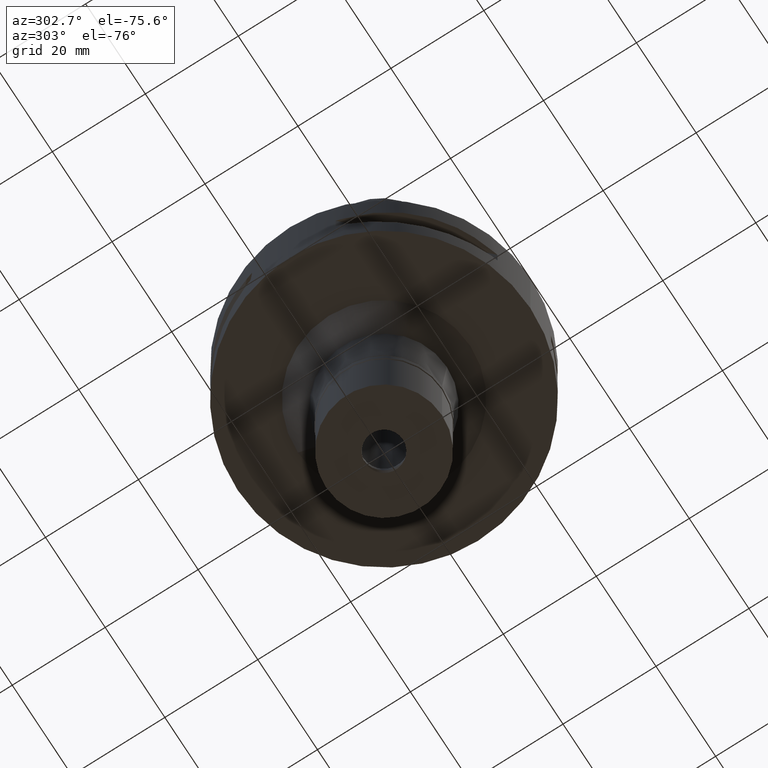
[diagram: clean part render]
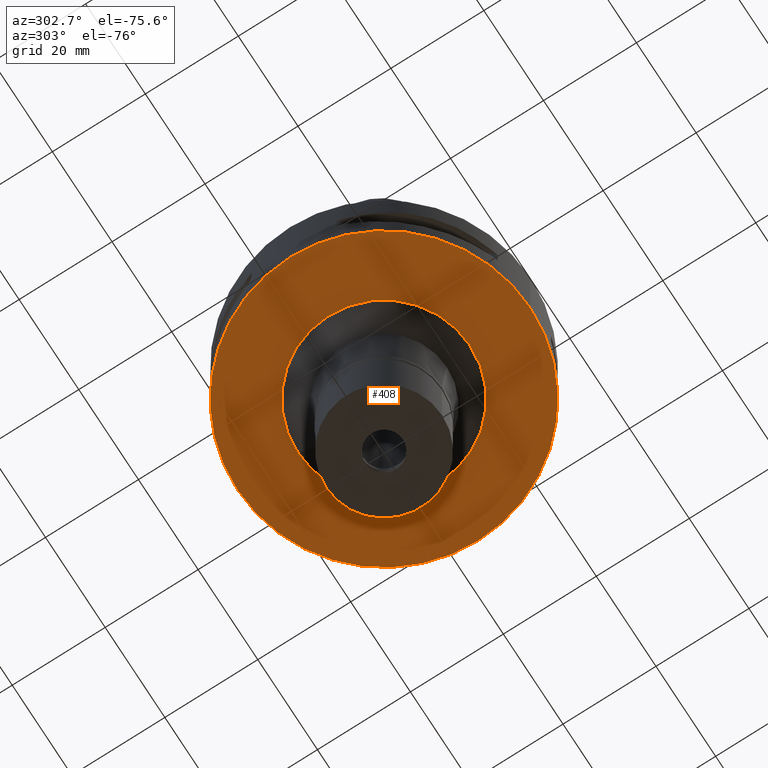
[diagram: same view with one face highlighted and labeled with its STEP entity id]
A machine part, auxiliary view. The second image highlights one B-rep face of the part: STEP entity #408.
In plain terms, the highlighted planar face has unit normal (0, 0, -1).
Its self-contained STEP definition (entity closure, byte-faithful):
#364 = AXIS2_PLACEMENT_3D ( 'NONE', #1292, #963, #2440 ) ;
#408 = ADVANCED_FACE ( 'NONE', ( #2336, #3432 ), #3809, .T. ) ;
#478 = EDGE_CURVE ( 'NONE', #1981, #3658, #1139, .T. ) ;
#708 = ORIENTED_EDGE ( 'NONE', *, *, #4659, .F. ) ;
#760 = AXIS2_PLACEMENT_3D ( 'NONE', #2020, #1599, #3071 ) ;
#842 = CIRCLE ( 'NONE', #4557, 31.50000000000000000 ) ;
#913 = AXIS2_PLACEMENT_3D ( 'NONE', #4223, #4545, #2643 ) ;
#962 = ORIENTED_EDGE ( 'NONE', *, *, #2249, .F. ) ;
#963 = DIRECTION ( 'NONE',  ( 0.0000000000000000000, 0.0000000000000000000, -1.000000000000000000 ) ) ;
#1139 = CIRCLE ( 'NONE', #760, 31.50000000000000000 ) ;
#1245 = EDGE_LOOP ( 'NONE', ( #2908, #708 ) ) ;
#1292 = CARTESIAN_POINT ( 'NONE',  ( 0.0000000000000000000, 0.0000000000000000000, -22.00000000000000000 ) ) ;
#1300 = CARTESIAN_POINT ( 'NONE',  ( 0.0000000000000000000, 31.50000000000000000, -22.00000000000000000 ) ) ;
#1325 = DIRECTION ( 'NONE',  ( 0.0000000000000000000, 1.000000000000000000, 0.0000000000000000000 ) ) ;
#1344 = CARTESIAN_POINT ( 'NONE',  ( 0.0000000000000000000, 0.0000000000000000000, -22.00000000000000000 ) ) ;
#1360 = EDGE_LOOP ( 'NONE', ( #2106, #962 ) ) ;
#1377 = CARTESIAN_POINT ( 'NONE',  ( 0.0000000000000000000, 1.257589798043999847E-14, -22.00000000000000000 ) ) ;
#1495 = CIRCLE ( 'NONE', #364, 18.52361736325000052 ) ;
#1504 = EDGE_CURVE ( 'NONE', #2961, #1960, #2393, .T. ) ;
#1599 = DIRECTION ( 'NONE',  ( 0.0000000000000000000, 0.0000000000000000000, 1.000000000000000000 ) ) ;
#1960 = VERTEX_POINT ( 'NONE', #2040 ) ;
#1981 = VERTEX_POINT ( 'NONE', #1300 ) ;
#2020 = CARTESIAN_POINT ( 'NONE',  ( 0.0000000000000000000, 1.257589798043999847E-14, -22.00000000000000000 ) ) ;
#2040 = CARTESIAN_POINT ( 'NONE',  ( 0.0000000000000000000, -18.52361736325000052, -22.00000000000000000 ) ) ;
#2106 = ORIENTED_EDGE ( 'NONE', *, *, #1504, .F. ) ;
#2141 = DIRECTION ( 'NONE',  ( 0.0000000000000000000, 0.0000000000000000000, 1.000000000000000000 ) ) ;
#2249 = EDGE_CURVE ( 'NONE', #1960, #2961, #1495, .T. ) ;
#2336 = FACE_OUTER_BOUND ( 'NONE', #1245, .T. ) ;
#2393 = CIRCLE ( 'NONE', #4492, 18.52361736325000052 ) ;
#2440 = DIRECTION ( 'NONE',  ( 0.0000000000000000000, -1.000000000000000000, 0.0000000000000000000 ) ) ;
#2643 = DIRECTION ( 'NONE',  ( 0.0000000000000000000, -1.000000000000000000, 0.0000000000000000000 ) ) ;
#2879 = CARTESIAN_POINT ( 'NONE',  ( 0.0000000000000000000, -31.50000000000000000, -22.00000000000000000 ) ) ;
#2908 = ORIENTED_EDGE ( 'NONE', *, *, #478, .F. ) ;
#2961 = VERTEX_POINT ( 'NONE', #4072 ) ;
#3071 = DIRECTION ( 'NONE',  ( 0.0000000000000000000, 1.000000000000000000, 0.0000000000000000000 ) ) ;
#3432 = FACE_BOUND ( 'NONE', #1360, .T. ) ;
#3583 = DIRECTION ( 'NONE',  ( 0.0000000000000000000, 0.0000000000000000000, -1.000000000000000000 ) ) ;
#3658 = VERTEX_POINT ( 'NONE', #2879 ) ;
#3809 = PLANE ( 'NONE',  #913 ) ;
#4072 = CARTESIAN_POINT ( 'NONE',  ( 0.0000000000000000000, 18.52361736325000052, -22.00000000000000000 ) ) ;
#4223 = CARTESIAN_POINT ( 'NONE',  ( 0.0000000000000000000, 0.0000000000000000000, -22.00000000000000000 ) ) ;
#4286 = DIRECTION ( 'NONE',  ( 0.0000000000000000000, -1.000000000000000000, 0.0000000000000000000 ) ) ;
#4492 = AXIS2_PLACEMENT_3D ( 'NONE', #1344, #3583, #1325 ) ;
#4545 = DIRECTION ( 'NONE',  ( 0.0000000000000000000, 0.0000000000000000000, -1.000000000000000000 ) ) ;
#4557 = AXIS2_PLACEMENT_3D ( 'NONE', #1377, #2141, #4286 ) ;
#4659 = EDGE_CURVE ( 'NONE', #3658, #1981, #842, .T. ) ;